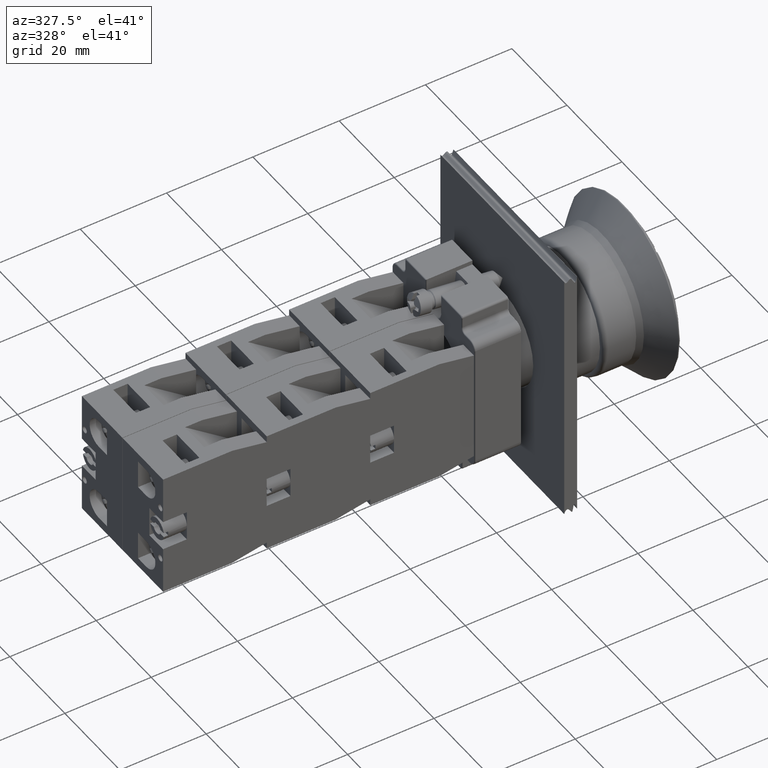
[diagram: clean part render]
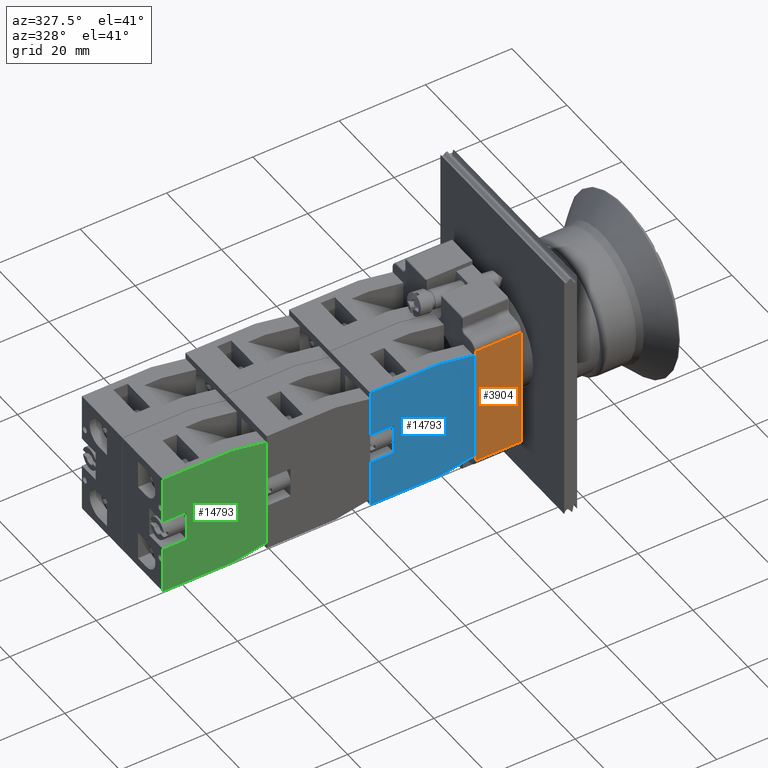
[diagram: same view with three faces highlighted in distinct colors, each labeled with its STEP entity id]
A machine part, auxiliary view with three faces highlighted in distinct colors.
Their STEP definitions:

[orange] entity #3904 — the highlighted planar face has unit normal (0, -1, -0).
#2299=CARTESIAN_POINT('',(14.967219691723894,-4.857135171842447,10.500000000000000));
#2300=VERTEX_POINT('',#2299);
#2318=CARTESIAN_POINT('',(-13.332780308276105,-4.857135171842446,10.500000000000000));
#2319=VERTEX_POINT('',#2318);
#2327=CARTESIAN_POINT('',(-13.332780308276105,-4.857135171842446,10.500000000000000));
#2328=DIRECTION('',(1.0,0.0,0.0));
#2329=VECTOR('',#2328,28.299999999999997);
#2330=LINE('',#2327,#2329);
#2331=EDGE_CURVE('',#2319,#2300,#2330,.T.);
#3862=CARTESIAN_POINT('',(14.967219691723894,-4.857135171842447,0.0));
#3863=VERTEX_POINT('',#3862);
#3864=CARTESIAN_POINT('',(14.967219691723894,-4.857135171842447,0.0));
#3865=DIRECTION('',(0.0,0.0,1.0));
#3866=VECTOR('',#3865,10.500000000000000);
#3867=LINE('',#3864,#3866);
#3868=EDGE_CURVE('',#3863,#2300,#3867,.T.);
#3881=CARTESIAN_POINT('',(14.967219691723894,-4.857135171842447,0.0));
#3882=DIRECTION('',(0.0,-1.0,0.0));
#3883=DIRECTION('',(0.0,0.0,-1.0));
#3884=AXIS2_PLACEMENT_3D('',#3881,#3882,#3883);
#3885=PLANE('',#3884);
#3886=ORIENTED_EDGE('',*,*,#2331,.F.);
#3887=CARTESIAN_POINT('',(-13.332780308276105,-4.857135171842446,0.0));
#3888=VERTEX_POINT('',#3887);
#3889=CARTESIAN_POINT('',(-13.332780308276105,-4.857135171842446,0.0));
#3890=DIRECTION('',(0.0,0.0,1.0));
#3891=VECTOR('',#3890,10.500000000000000);
#3892=LINE('',#3889,#3891);
#3893=EDGE_CURVE('',#3888,#2319,#3892,.T.);
#3894=ORIENTED_EDGE('',*,*,#3893,.F.);
#3895=CARTESIAN_POINT('',(-13.332780308276105,-4.857135171842446,0.0));
#3896=DIRECTION('',(1.0,0.0,0.0));
#3897=VECTOR('',#3896,28.299999999999997);
#3898=LINE('',#3895,#3897);
#3899=EDGE_CURVE('',#3888,#3863,#3898,.T.);
#3900=ORIENTED_EDGE('',*,*,#3899,.T.);
#3901=ORIENTED_EDGE('',*,*,#3868,.T.);
#3902=EDGE_LOOP('',(#3886,#3894,#3900,#3901));
#3903=FACE_OUTER_BOUND('',#3902,.T.);
#3904=ADVANCED_FACE('',(#3903),#3885,.T.);

[blue] entity #14793 — the highlighted planar face has unit normal (0, -1, -0).
#13096=CARTESIAN_POINT('',(-44.936741828918457,7.797073323279626,14.699999999999999));
#13097=VERTEX_POINT('',#13096);
#13104=CARTESIAN_POINT('',(-44.936741828918471,23.797073323279623,14.699999999999999));
#13105=VERTEX_POINT('',#13104);
#13106=CARTESIAN_POINT('',(-44.936741828918457,7.797073323279626,14.699999999999999));
#13107=DIRECTION('',(0.0,1.0,0.0));
#13108=VECTOR('',#13107,15.999999999999996);
#13109=LINE('',#13106,#13108);
#13110=EDGE_CURVE('',#13097,#13105,#13109,.T.);
#13177=CARTESIAN_POINT('',(-43.436741828918457,-0.202926676720380,14.699999999999999));
#13178=VERTEX_POINT('',#13177);
#13185=CARTESIAN_POINT('',(-43.436741828918457,-0.202926676720380,14.699999999999999));
#13186=DIRECTION('',(-0.184288535050185,0.982872186934322,0.0));
#13187=VECTOR('',#13186,8.139410298049860);
#13188=LINE('',#13185,#13187);
#13189=EDGE_CURVE('',#13178,#13097,#13188,.T.);
#13328=CARTESIAN_POINT('',(-17.436741828918457,-0.202926676720377,14.699999999999999));
#13329=VERTEX_POINT('',#13328);
#13336=CARTESIAN_POINT('',(-17.436741828918457,-0.202926676720377,14.699999999999999));
#13337=DIRECTION('',(-1.0,0.0,0.0));
#13338=VECTOR('',#13337,26.0);
#13339=LINE('',#13336,#13338);
#13340=EDGE_CURVE('',#13329,#13178,#13339,.T.);
#13421=CARTESIAN_POINT('',(-15.936741828918466,7.797073323279626,14.699999999999999));
#13422=VERTEX_POINT('',#13421);
#13429=CARTESIAN_POINT('',(-15.936741828918466,7.797073323279626,14.699999999999999));
#13430=DIRECTION('',(-0.184288535050184,-0.982872186934322,0.0));
#13431=VECTOR('',#13430,8.139410298049855);
#13432=LINE('',#13429,#13431);
#13433=EDGE_CURVE('',#13422,#13329,#13432,.T.);
#14528=CARTESIAN_POINT('',(-26.936741828918468,18.297073323279626,14.699999999999999));
#14529=VERTEX_POINT('',#14528);
#14538=CARTESIAN_POINT('',(-26.936741828918468,23.797073323279626,14.699999999999999));
#14539=VERTEX_POINT('',#14538);
#14540=CARTESIAN_POINT('',(-26.936741828918468,23.797073323279626,14.699999999999999));
#14541=DIRECTION('',(0.0,-1.0,0.0));
#14542=VECTOR('',#14541,5.500000000000000);
#14543=LINE('',#14540,#14542);
#14544=EDGE_CURVE('',#14539,#14529,#14543,.T.);
#14599=CARTESIAN_POINT('',(-33.936741828918464,18.297073323279619,14.699999999999999));
#14600=VERTEX_POINT('',#14599);
#14608=CARTESIAN_POINT('',(-33.936741828918464,23.797073323279623,14.699999999999999));
#14609=VERTEX_POINT('',#14608);
#14616=CARTESIAN_POINT('',(-33.936741828918464,18.297073323279619,14.699999999999999));
#14617=DIRECTION('',(0.0,1.0,0.0));
#14618=VECTOR('',#14617,5.500000000000004);
#14619=LINE('',#14616,#14618);
#14620=EDGE_CURVE('',#14600,#14609,#14619,.T.);
#14633=CARTESIAN_POINT('',(-26.936741828918468,18.297073323279626,14.699999999999999));
#14634=DIRECTION('',(-1.0,0.0,0.0));
#14635=VECTOR('',#14634,6.999999999999996);
#14636=LINE('',#14633,#14635);
#14637=EDGE_CURVE('',#14529,#14600,#14636,.T.);
#14653=CARTESIAN_POINT('',(-15.936741828918466,23.797073323279626,14.699999999999999));
#14654=VERTEX_POINT('',#14653);
#14655=CARTESIAN_POINT('',(-26.936741828918468,23.797073323279626,14.699999999999999));
#14656=DIRECTION('',(1.0,0.0,0.0));
#14657=VECTOR('',#14656,11.000000000000002);
#14658=LINE('',#14655,#14657);
#14659=EDGE_CURVE('',#14539,#14654,#14658,.T.);
#14676=CARTESIAN_POINT('',(-44.936741828918471,23.797073323279623,14.699999999999999));
#14677=DIRECTION('',(1.0,0.0,0.0));
#14678=VECTOR('',#14677,11.000000000000007);
#14679=LINE('',#14676,#14678);
#14680=EDGE_CURVE('',#13105,#14609,#14679,.T.);
#14724=CARTESIAN_POINT('',(-15.936741828918466,23.797073323279626,14.699999999999999));
#14725=DIRECTION('',(0.0,-1.0,0.0));
#14726=VECTOR('',#14725,16.0);
#14727=LINE('',#14724,#14726);
#14728=EDGE_CURVE('',#14654,#13422,#14727,.T.);
#14776=CARTESIAN_POINT('',(-30.436741828918457,12.124046801833057,14.699999999999999));
#14777=DIRECTION('',(0.0,0.0,1.0));
#14778=DIRECTION('',(1.0,0.0,0.0));
#14779=AXIS2_PLACEMENT_3D('',#14776,#14777,#14778);
#14780=PLANE('',#14779);
#14781=ORIENTED_EDGE('',*,*,#14620,.T.);
#14782=ORIENTED_EDGE('',*,*,#14680,.F.);
#14783=ORIENTED_EDGE('',*,*,#13110,.F.);
#14784=ORIENTED_EDGE('',*,*,#13189,.F.);
#14785=ORIENTED_EDGE('',*,*,#13340,.F.);
#14786=ORIENTED_EDGE('',*,*,#13433,.F.);
#14787=ORIENTED_EDGE('',*,*,#14728,.F.);
#14788=ORIENTED_EDGE('',*,*,#14659,.F.);
#14789=ORIENTED_EDGE('',*,*,#14544,.T.);
#14790=ORIENTED_EDGE('',*,*,#14637,.T.);
#14791=EDGE_LOOP('',(#14781,#14782,#14783,#14784,#14785,#14786,#14787,#14788,#14789,#14790));
#14792=FACE_OUTER_BOUND('',#14791,.T.);
#14793=ADVANCED_FACE('',(#14792),#14780,.T.);

[green] entity #14793 — the highlighted planar face has unit normal (0, -1, -0).
#13096=CARTESIAN_POINT('',(-44.936741828918457,7.797073323279626,14.699999999999999));
#13097=VERTEX_POINT('',#13096);
#13104=CARTESIAN_POINT('',(-44.936741828918471,23.797073323279623,14.699999999999999));
#13105=VERTEX_POINT('',#13104);
#13106=CARTESIAN_POINT('',(-44.936741828918457,7.797073323279626,14.699999999999999));
#13107=DIRECTION('',(0.0,1.0,0.0));
#13108=VECTOR('',#13107,15.999999999999996);
#13109=LINE('',#13106,#13108);
#13110=EDGE_CURVE('',#13097,#13105,#13109,.T.);
#13177=CARTESIAN_POINT('',(-43.436741828918457,-0.202926676720380,14.699999999999999));
#13178=VERTEX_POINT('',#13177);
#13185=CARTESIAN_POINT('',(-43.436741828918457,-0.202926676720380,14.699999999999999));
#13186=DIRECTION('',(-0.184288535050185,0.982872186934322,0.0));
#13187=VECTOR('',#13186,8.139410298049860);
#13188=LINE('',#13185,#13187);
#13189=EDGE_CURVE('',#13178,#13097,#13188,.T.);
#13328=CARTESIAN_POINT('',(-17.436741828918457,-0.202926676720377,14.699999999999999));
#13329=VERTEX_POINT('',#13328);
#13336=CARTESIAN_POINT('',(-17.436741828918457,-0.202926676720377,14.699999999999999));
#13337=DIRECTION('',(-1.0,0.0,0.0));
#13338=VECTOR('',#13337,26.0);
#13339=LINE('',#13336,#13338);
#13340=EDGE_CURVE('',#13329,#13178,#13339,.T.);
#13421=CARTESIAN_POINT('',(-15.936741828918466,7.797073323279626,14.699999999999999));
#13422=VERTEX_POINT('',#13421);
#13429=CARTESIAN_POINT('',(-15.936741828918466,7.797073323279626,14.699999999999999));
#13430=DIRECTION('',(-0.184288535050184,-0.982872186934322,0.0));
#13431=VECTOR('',#13430,8.139410298049855);
#13432=LINE('',#13429,#13431);
#13433=EDGE_CURVE('',#13422,#13329,#13432,.T.);
#14528=CARTESIAN_POINT('',(-26.936741828918468,18.297073323279626,14.699999999999999));
#14529=VERTEX_POINT('',#14528);
#14538=CARTESIAN_POINT('',(-26.936741828918468,23.797073323279626,14.699999999999999));
#14539=VERTEX_POINT('',#14538);
#14540=CARTESIAN_POINT('',(-26.936741828918468,23.797073323279626,14.699999999999999));
#14541=DIRECTION('',(0.0,-1.0,0.0));
#14542=VECTOR('',#14541,5.500000000000000);
#14543=LINE('',#14540,#14542);
#14544=EDGE_CURVE('',#14539,#14529,#14543,.T.);
#14599=CARTESIAN_POINT('',(-33.936741828918464,18.297073323279619,14.699999999999999));
#14600=VERTEX_POINT('',#14599);
#14608=CARTESIAN_POINT('',(-33.936741828918464,23.797073323279623,14.699999999999999));
#14609=VERTEX_POINT('',#14608);
#14616=CARTESIAN_POINT('',(-33.936741828918464,18.297073323279619,14.699999999999999));
#14617=DIRECTION('',(0.0,1.0,0.0));
#14618=VECTOR('',#14617,5.500000000000004);
#14619=LINE('',#14616,#14618);
#14620=EDGE_CURVE('',#14600,#14609,#14619,.T.);
#14633=CARTESIAN_POINT('',(-26.936741828918468,18.297073323279626,14.699999999999999));
#14634=DIRECTION('',(-1.0,0.0,0.0));
#14635=VECTOR('',#14634,6.999999999999996);
#14636=LINE('',#14633,#14635);
#14637=EDGE_CURVE('',#14529,#14600,#14636,.T.);
#14653=CARTESIAN_POINT('',(-15.936741828918466,23.797073323279626,14.699999999999999));
#14654=VERTEX_POINT('',#14653);
#14655=CARTESIAN_POINT('',(-26.936741828918468,23.797073323279626,14.699999999999999));
#14656=DIRECTION('',(1.0,0.0,0.0));
#14657=VECTOR('',#14656,11.000000000000002);
#14658=LINE('',#14655,#14657);
#14659=EDGE_CURVE('',#14539,#14654,#14658,.T.);
#14676=CARTESIAN_POINT('',(-44.936741828918471,23.797073323279623,14.699999999999999));
#14677=DIRECTION('',(1.0,0.0,0.0));
#14678=VECTOR('',#14677,11.000000000000007);
#14679=LINE('',#14676,#14678);
#14680=EDGE_CURVE('',#13105,#14609,#14679,.T.);
#14724=CARTESIAN_POINT('',(-15.936741828918466,23.797073323279626,14.699999999999999));
#14725=DIRECTION('',(0.0,-1.0,0.0));
#14726=VECTOR('',#14725,16.0);
#14727=LINE('',#14724,#14726);
#14728=EDGE_CURVE('',#14654,#13422,#14727,.T.);
#14776=CARTESIAN_POINT('',(-30.436741828918457,12.124046801833057,14.699999999999999));
#14777=DIRECTION('',(0.0,0.0,1.0));
#14778=DIRECTION('',(1.0,0.0,0.0));
#14779=AXIS2_PLACEMENT_3D('',#14776,#14777,#14778);
#14780=PLANE('',#14779);
#14781=ORIENTED_EDGE('',*,*,#14620,.T.);
#14782=ORIENTED_EDGE('',*,*,#14680,.F.);
#14783=ORIENTED_EDGE('',*,*,#13110,.F.);
#14784=ORIENTED_EDGE('',*,*,#13189,.F.);
#14785=ORIENTED_EDGE('',*,*,#13340,.F.);
#14786=ORIENTED_EDGE('',*,*,#13433,.F.);
#14787=ORIENTED_EDGE('',*,*,#14728,.F.);
#14788=ORIENTED_EDGE('',*,*,#14659,.F.);
#14789=ORIENTED_EDGE('',*,*,#14544,.T.);
#14790=ORIENTED_EDGE('',*,*,#14637,.T.);
#14791=EDGE_LOOP('',(#14781,#14782,#14783,#14784,#14785,#14786,#14787,#14788,#14789,#14790));
#14792=FACE_OUTER_BOUND('',#14791,.T.);
#14793=ADVANCED_FACE('',(#14792),#14780,.T.);